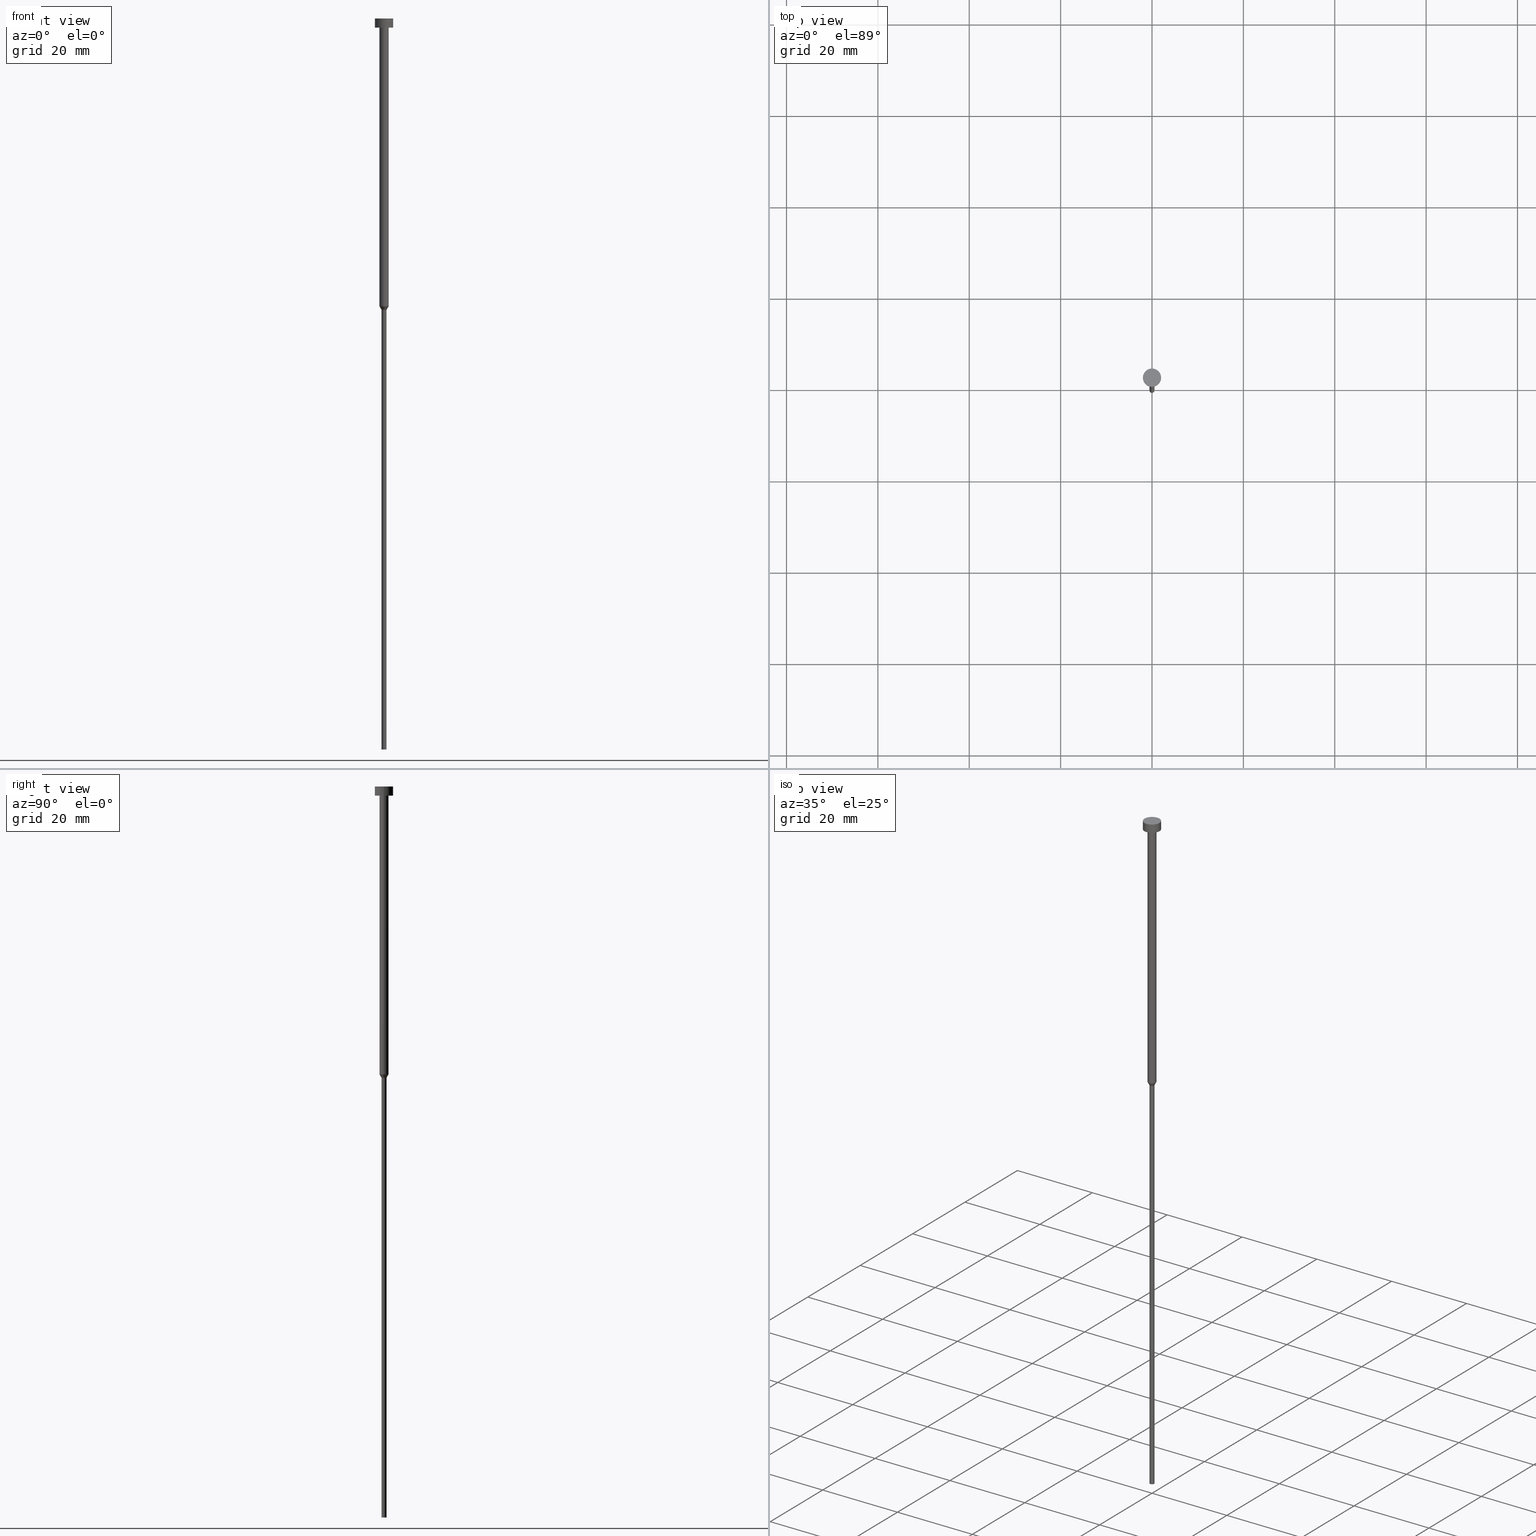
[diagram: canonical four-view strip — front | top / right | iso, engineering-drawing reading convention]
A machine part, canonical four-view strip (front | top / right | iso — engineering-drawing reading convention). The complete STEP part file that produces these views, byte-faithful:
ISO-10303-21;
HEADER;
FILE_DESCRIPTION (( 'STEP AP203' ),
    '1' );
FILE_NAME ('aa10.STEP',
    '2023-02-13T11:51:21',
    ( '' ),
    ( '' ),
    'SwSTEP 2.0',
    'SolidWorks 2019',
    '' );
FILE_SCHEMA (( 'CONFIG_CONTROL_DESIGN' ));
ENDSEC;

DATA;
#1 = EDGE_LOOP ( 'NONE', ( #102, #282, #297, #321 ) ) ;
#2 = VECTOR ( 'NONE', #203, 1000.000000000000000 ) ;
#3 = CARTESIAN_POINT ( 'NONE',  ( -1.000000000000003331, 1.224646799147357151E-16, 0.000000000000000000 ) ) ;
#4 = SECURITY_CLASSIFICATION ( '', '', #103 ) ;
#5 = EDGE_CURVE ( 'NONE', #54, #15, #245, .T. ) ;
#6 = DIRECTION ( 'NONE',  ( 1.000000000000000000, 0.000000000000000000, 0.000000000000000000 ) ) ;
#7 = CARTESIAN_POINT ( 'NONE',  ( 2.000000000000000000, 0.000000000000000000, -2.000000000000000444 ) ) ;
#8 = CYLINDRICAL_SURFACE ( 'NONE', #108, 2.000000000000000000 ) ;
#9 = CONICAL_SURFACE ( 'NONE', #170, 1.000000000000003109, 0.5235987755982981495 ) ;
#10 = ORIENTED_EDGE ( 'NONE', *, *, #331, .T. ) ;
#11 = ORGANIZATION ( 'NEUR�EN�', 'NEUR�EN�', '' ) ;
#12 = EDGE_CURVE ( 'NONE', #116, #174, #180, .T. ) ;
#13 = DIRECTION ( 'NONE',  ( -0.000000000000000000, -0.000000000000000000, 1.000000000000000000 ) ) ;
#14 = PERSON_AND_ORGANIZATION_ROLE ( 'creator' ) ;
#15 = VERTEX_POINT ( 'NONE', #133 ) ;
#16 = APPROVAL_DATE_TIME ( #294, #106 ) ;
#17 = CIRCLE ( 'NONE', #322, 1.000000000000003553 ) ;
#18 = FACE_OUTER_BOUND ( 'NONE', #230, .T. ) ;
#19 = DIRECTION ( 'NONE',  ( -0.000000000000000000, -0.000000000000000000, 1.000000000000000000 ) ) ;
#20 = ORIENTED_EDGE ( 'NONE', *, *, #305, .F. ) ;
#21 = EDGE_CURVE ( 'NONE', #149, #54, #111, .T. ) ;
#22 = APPROVAL_ROLE ( '' ) ;
#23 = EDGE_LOOP ( 'NONE', ( #20, #33 ) ) ;
#24 = AXIS2_PLACEMENT_3D ( 'NONE', #354, #224, #166 ) ;
#25 = PRODUCT_DEFINITION_FORMATION_WITH_SPECIFIED_SOURCE ( 'LIBOVOLN�', '', #261, .NOT_KNOWN. ) ;
#26 = APPROVAL_STATUS ( 'not_yet_approved' ) ;
#27 = DIRECTION ( 'NONE',  ( -0.000000000000000000, -0.000000000000000000, 1.000000000000000000 ) ) ;
#28 = EDGE_CURVE ( 'NONE', #54, #232, #191, .T. ) ;
#29 = AXIS2_PLACEMENT_3D ( 'NONE', #148, #173, #36 ) ;
#30 = CC_DESIGN_APPROVAL ( #252, ( #4 ) ) ;
#31 = LINE ( 'NONE', #222, #227 ) ;
#32 = CARTESIAN_POINT ( 'NONE',  ( -1.000000000000003553, 1.224646799147357398E-16, -2.000000000000000444 ) ) ;
#33 = ORIENTED_EDGE ( 'NONE', *, *, #198, .F. ) ;
#34 = CARTESIAN_POINT ( 'NONE',  ( 0.000000000000000000, 0.000000000000000000, -160.0000000000000000 ) ) ;
#35 = VECTOR ( 'NONE', #68, 1000.000000000000114 ) ;
#36 = DIRECTION ( 'NONE',  ( 1.000000000000000000, 0.000000000000000000, 0.000000000000000000 ) ) ;
#37 = CC_DESIGN_APPROVAL ( #106, ( #57 ) ) ;
#38 = LINE ( 'NONE', #256, #35 ) ;
#39 = DIRECTION ( 'NONE',  ( -0.000000000000000000, -0.000000000000000000, 1.000000000000000000 ) ) ;
#40 = EDGE_LOOP ( 'NONE', ( #241, #100, #274, #172 ) ) ;
#41 = APPLICATION_CONTEXT ( 'configuration controlled 3d designs of mechanical parts and assemblies' ) ;
#42 = AXIS2_PLACEMENT_3D ( 'NONE', #138, #276, #168 ) ;
#43 = DIRECTION ( 'NONE',  ( 1.000000000000000000, 0.000000000000000000, 0.000000000000000000 ) ) ;
#44 = VERTEX_POINT ( 'NONE', #78 ) ;
#45 = DIRECTION ( 'NONE',  ( -0.000000000000000000, -0.000000000000000000, 1.000000000000000000 ) ) ;
#46 = ORIENTED_EDGE ( 'NONE', *, *, #325, .T. ) ;
#47 =( NAMED_UNIT ( * ) SI_UNIT ( $, .STERADIAN. ) SOLID_ANGLE_UNIT ( ) );
#48 = ORIENTED_EDGE ( 'NONE', *, *, #181, .F. ) ;
#49 = LOCAL_TIME ( 12, 51, 21.00000000000000000, #192 ) ;
#50 = CALENDAR_DATE ( 2023, 13, 2 ) ;
#51 = ORIENTED_EDGE ( 'NONE', *, *, #210, .T. ) ;
#52 = CALENDAR_DATE ( 2023, 13, 2 ) ;
#53 = ORIENTED_EDGE ( 'NONE', *, *, #309, .F. ) ;
#54 = VERTEX_POINT ( 'NONE', #347 ) ;
#55 = CC_DESIGN_SECURITY_CLASSIFICATION ( #4, ( #25 ) ) ;
#56 = FACE_BOUND ( 'NONE', #259, .T. ) ;
#57 = PRODUCT_DEFINITION ( 'NEZN�M�', '', #25, #268 ) ;
#58 = ORIENTED_EDGE ( 'NONE', *, *, #146, .F. ) ;
#59 = VECTOR ( 'NONE', #209, 1000.000000000000000 ) ;
#60 = ADVANCED_BREP_SHAPE_REPRESENTATION ( 'aa10', ( #242, #177 ), #90 ) ;
#61 = VERTEX_POINT ( 'NONE', #109 ) ;
#62 = ADVANCED_FACE ( 'NONE', ( #217 ), #348, .T. ) ;
#63 = DIRECTION ( 'NONE',  ( 1.000000000000000000, 0.000000000000000000, 0.000000000000000000 ) ) ;
#64 = CARTESIAN_POINT ( 'NONE',  ( 0.000000000000000000, 0.000000000000000000, 0.000000000000000000 ) ) ;
#65 = ORIENTED_EDGE ( 'NONE', *, *, #12, .T. ) ;
#66 = DIRECTION ( 'NONE',  ( 1.000000000000000000, 0.000000000000000000, 0.000000000000000000 ) ) ;
#67 = PRODUCT_RELATED_PRODUCT_CATEGORY ( 'detail', '', ( #261 ) ) ;
#68 = DIRECTION ( 'NONE',  ( 0.4999999999999993339, 0.000000000000000000, 0.8660254037844389297 ) ) ;
#69 = ORIENTED_EDGE ( 'NONE', *, *, #28, .T. ) ;
#70 = DIRECTION ( 'NONE',  ( -0.000000000000000000, -0.000000000000000000, 1.000000000000000000 ) ) ;
#71 = APPROVAL_PERSON_ORGANIZATION ( #79, #283, #22 ) ;
#72 = EDGE_CURVE ( 'NONE', #15, #61, #328, .T. ) ;
#73 = DATE_AND_TIME ( #208, #342 ) ;
#74 = CARTESIAN_POINT ( 'NONE',  ( 0.000000000000000000, 0.000000000000000000, -63.77942286340600475 ) ) ;
#75 = APPROVAL_DATE_TIME ( #73, #283 ) ;
#76 = VERTEX_POINT ( 'NONE', #266 ) ;
#77 = COORDINATED_UNIVERSAL_TIME_OFFSET ( 1, 0, .AHEAD. ) ;
#78 = CARTESIAN_POINT ( 'NONE',  ( -2.000000000000000000, 2.449293598294706414E-16, -2.000000000000000444 ) ) ;
#79 = PERSON_AND_ORGANIZATION ( #200, #11 ) ;
#80 = ORIENTED_EDGE ( 'NONE', *, *, #250, .F. ) ;
#81 = ADVANCED_FACE ( 'NONE', ( #18 ), #131, .T. ) ;
#82 = CALENDAR_DATE ( 2023, 13, 2 ) ;
#83 = FACE_OUTER_BOUND ( 'NONE', #23, .T. ) ;
#84 = AXIS2_PLACEMENT_3D ( 'NONE', #118, #251, #226 ) ;
#85 = AXIS2_PLACEMENT_3D ( 'NONE', #262, #333, #95 ) ;
#86 = PLANE ( 'NONE',  #24 ) ;
#87 = DATE_TIME_ROLE ( 'classification_date' ) ;
#88 = ADVANCED_FACE ( 'NONE', ( #56, #83 ), #86, .T. ) ;
#89 = AXIS2_PLACEMENT_3D ( 'NONE', #144, #255, #6 ) ;
#90 =( GEOMETRIC_REPRESENTATION_CONTEXT ( 3 ) GLOBAL_UNCERTAINTY_ASSIGNED_CONTEXT ( ( #107 ) ) GLOBAL_UNIT_ASSIGNED_CONTEXT ( ( #110, #270, #47 ) ) REPRESENTATION_CONTEXT ( 'NONE', 'WORKASPACE' ) );
#91 = DIRECTION ( 'NONE',  ( 0.000000000000000000, -0.000000000000000000, 1.000000000000000000 ) ) ;
#92 = DIRECTION ( 'NONE',  ( 1.000000000000000000, 0.000000000000000000, 0.000000000000000000 ) ) ;
#93 = VERTEX_POINT ( 'NONE', #32 ) ;
#94 = AXIS2_PLACEMENT_3D ( 'NONE', #115, #197, #112 ) ;
#95 = DIRECTION ( 'NONE',  ( 1.000000000000000000, 0.000000000000000000, 0.000000000000000000 ) ) ;
#96 = ORIENTED_EDGE ( 'NONE', *, *, #142, .F. ) ;
#97 = DIRECTION ( 'NONE',  ( 1.000000000000000000, 0.000000000000000000, 0.000000000000000000 ) ) ;
#98 = LINE ( 'NONE', #205, #246 ) ;
#99 = DATE_TIME_ROLE ( 'creation_date' ) ;
#100 = ORIENTED_EDGE ( 'NONE', *, *, #5, .T. ) ;
#101 = COORDINATED_UNIVERSAL_TIME_OFFSET ( 1, 0, .AHEAD. ) ;
#102 = ORIENTED_EDGE ( 'NONE', *, *, #176, .T. ) ;
#103 = SECURITY_CLASSIFICATION_LEVEL ( 'unclassified' ) ;
#104 = DIRECTION ( 'NONE',  ( 1.000000000000000000, 0.000000000000000000, 0.000000000000000000 ) ) ;
#105 = CARTESIAN_POINT ( 'NONE',  ( 0.000000000000000000, 0.000000000000000000, 0.000000000000000000 ) ) ;
#106 = APPROVAL ( #187, 'NEUR�EN�' ) ;
#107 = UNCERTAINTY_MEASURE_WITH_UNIT (LENGTH_MEASURE( 1.000000000000000082E-05 ), #110, 'distance_accuracy_value', 'NONE');
#108 = AXIS2_PLACEMENT_3D ( 'NONE', #338, #143, #66 ) ;
#109 = CARTESIAN_POINT ( 'NONE',  ( 1.000000000000003109, 0.000000000000000000, -63.00000000000000000 ) ) ;
#110 =( LENGTH_UNIT ( ) NAMED_UNIT ( * ) SI_UNIT ( .MILLI., .METRE. ) );
#111 = LINE ( 'NONE', #296, #59 ) ;
#112 = DIRECTION ( 'NONE',  ( -1.000000000000000000, 0.000000000000000000, -0.000000000000000000 ) ) ;
#113 = ADVANCED_FACE ( 'NONE', ( #193 ), #9, .T. ) ;
#114 = CARTESIAN_POINT ( 'NONE',  ( 0.000000000000000000, 0.000000000000000000, -63.00000000000000000 ) ) ;
#115 = CARTESIAN_POINT ( 'NONE',  ( 0.000000000000000000, 0.000000000000000000, -160.0000000000000000 ) ) ;
#116 = VERTEX_POINT ( 'NONE', #167 ) ;
#117 = SHAPE_DEFINITION_REPRESENTATION ( #120, #60 ) ;
#118 = CARTESIAN_POINT ( 'NONE',  ( 0.000000000000000000, 0.000000000000000000, -63.77942286340600475 ) ) ;
#119 = VECTOR ( 'NONE', #258, 1000.000000000000000 ) ;
#120 = PRODUCT_DEFINITION_SHAPE ( 'NONE', 'NONE',  #57 ) ;
#121 = CARTESIAN_POINT ( 'NONE',  ( 1.000000000000003553, 0.000000000000000000, -2.000000000000000444 ) ) ;
#122 = LINE ( 'NONE', #3, #2 ) ;
#123 = ORIENTED_EDGE ( 'NONE', *, *, #28, .F. ) ;
#124 = CARTESIAN_POINT ( 'NONE',  ( 0.5499999999999999334, 0.000000000000000000, 0.000000000000000000 ) ) ;
#125 = FACE_OUTER_BOUND ( 'NONE', #204, .T. ) ;
#126 = ADVANCED_FACE ( 'NONE', ( #253 ), #351, .T. ) ;
#127 = DIRECTION ( 'NONE',  ( 0.000000000000000000, 0.000000000000000000, 1.000000000000000000 ) ) ;
#128 = CARTESIAN_POINT ( 'NONE',  ( 0.000000000000000000, 0.000000000000000000, -2.449293598294705921E-16 ) ) ;
#129 = CIRCLE ( 'NONE', #42, 0.5499999999999999334 ) ;
#130 = PERSON_AND_ORGANIZATION ( #200, #11 ) ;
#131 = CYLINDRICAL_SURFACE ( 'NONE', #221, 1.000000000000003331 ) ;
#132 = MECHANICAL_CONTEXT ( 'NONE', #41, 'mechanical' ) ;
#133 = CARTESIAN_POINT ( 'NONE',  ( -1.000000000000003109, 1.224646799147356905E-16, -63.00000000000000000 ) ) ;
#134 = CC_DESIGN_PERSON_AND_ORGANIZATION_ASSIGNMENT ( #317, #160, ( #261 ) ) ;
#135 = AXIS2_PLACEMENT_3D ( 'NONE', #332, #13, #92 ) ;
#136 = ORIENTED_EDGE ( 'NONE', *, *, #176, .F. ) ;
#137 = EDGE_CURVE ( 'NONE', #232, #54, #202, .T. ) ;
#138 = CARTESIAN_POINT ( 'NONE',  ( 0.000000000000000000, 0.000000000000000000, -160.0000000000000000 ) ) ;
#139 = DIRECTION ( 'NONE',  ( 1.000000000000000000, 0.000000000000000000, 0.000000000000000000 ) ) ;
#140 = APPROVAL_PERSON_ORGANIZATION ( #184, #106, #243 ) ;
#141 = CARTESIAN_POINT ( 'NONE',  ( 0.000000000000000000, 0.000000000000000000, -2.000000000000000444 ) ) ;
#142 = EDGE_CURVE ( 'NONE', #301, #93, #17, .T. ) ;
#143 = DIRECTION ( 'NONE',  ( -0.000000000000000000, -0.000000000000000000, 1.000000000000000000 ) ) ;
#144 = CARTESIAN_POINT ( 'NONE',  ( 0.000000000000000000, 0.000000000000000000, 0.000000000000000000 ) ) ;
#145 = ORIENTED_EDGE ( 'NONE', *, *, #12, .F. ) ;
#146 = EDGE_CURVE ( 'NONE', #61, #301, #31, .T. ) ;
#147 = VECTOR ( 'NONE', #349, 1000.000000000000114 ) ;
#148 = CARTESIAN_POINT ( 'NONE',  ( 0.000000000000000000, 0.000000000000000000, -2.000000000000000444 ) ) ;
#149 = VERTEX_POINT ( 'NONE', #329 ) ;
#150 = VECTOR ( 'NONE', #70, 1000.000000000000000 ) ;
#151 = CIRCLE ( 'NONE', #239, 2.000000000000000000 ) ;
#152 = AXIS2_PLACEMENT_3D ( 'NONE', #267, #45, #219 ) ;
#153 = LINE ( 'NONE', #124, #150 ) ;
#154 = EDGE_LOOP ( 'NONE', ( #323, #206, #53, #80 ) ) ;
#155 = EDGE_LOOP ( 'NONE', ( #46, #51, #96, #58 ) ) ;
#156 = AXIS2_PLACEMENT_3D ( 'NONE', #162, #220, #104 ) ;
#157 = PERSON_AND_ORGANIZATION_ROLE ( 'creator' ) ;
#158 = CARTESIAN_POINT ( 'NONE',  ( -1.000000000000003109, 1.224646799147356905E-16, -63.00000000000000000 ) ) ;
#159 = CC_DESIGN_PERSON_AND_ORGANIZATION_ASSIGNMENT ( #213, #319, ( #4 ) ) ;
#160 = PERSON_AND_ORGANIZATION_ROLE ( 'design_owner' ) ;
#161 = APPROVAL_STATUS ( 'not_yet_approved' ) ;
#162 = CARTESIAN_POINT ( 'NONE',  ( 0.000000000000000000, 0.000000000000000000, -63.00000000000000000 ) ) ;
#163 = CC_DESIGN_PERSON_AND_ORGANIZATION_ASSIGNMENT ( #289, #291, ( #25 ) ) ;
#164 = AXIS2_PLACEMENT_3D ( 'NONE', #141, #306, #254 ) ;
#165 = ORIENTED_EDGE ( 'NONE', *, *, #146, .T. ) ;
#166 = DIRECTION ( 'NONE',  ( -1.000000000000000000, 0.000000000000000000, -0.000000000000000000 ) ) ;
#167 = CARTESIAN_POINT ( 'NONE',  ( -2.000000000000000000, 2.449293598294706414E-16, -2.449293598294705921E-16 ) ) ;
#168 = DIRECTION ( 'NONE',  ( 1.000000000000000000, 0.000000000000000000, 0.000000000000000000 ) ) ;
#169 = DIRECTION ( 'NONE',  ( 1.000000000000000000, 0.000000000000000000, 0.000000000000000000 ) ) ;
#170 = AXIS2_PLACEMENT_3D ( 'NONE', #114, #249, #63 ) ;
#171 = CARTESIAN_POINT ( 'NONE',  ( 0.000000000000000000, 0.000000000000000000, -63.00000000000000000 ) ) ;
#172 = ORIENTED_EDGE ( 'NONE', *, *, #331, .F. ) ;
#173 = DIRECTION ( 'NONE',  ( -0.000000000000000000, -0.000000000000000000, 1.000000000000000000 ) ) ;
#174 = VERTEX_POINT ( 'NONE', #326 ) ;
#175 = CARTESIAN_POINT ( 'NONE',  ( 0.5500000000000000444, 0.000000000000000000, -63.77942286340600475 ) ) ;
#176 = EDGE_CURVE ( 'NONE', #76, #149, #129, .T. ) ;
#177 = AXIS2_PLACEMENT_3D ( 'NONE', #105, #127, #263 ) ;
#178 = PERSON_AND_ORGANIZATION ( #200, #11 ) ;
#179 = DIRECTION ( 'NONE',  ( -0.000000000000000000, -0.000000000000000000, 1.000000000000000000 ) ) ;
#180 = CIRCLE ( 'NONE', #340, 2.000000000000000000 ) ;
#181 = EDGE_CURVE ( 'NONE', #93, #301, #293, .T. ) ;
#182 = ORIENTED_EDGE ( 'NONE', *, *, #218, .T. ) ;
#183 = AXIS2_PLACEMENT_3D ( 'NONE', #34, #310, #97 ) ;
#184 = PERSON_AND_ORGANIZATION ( #200, #11 ) ;
#185 = LOCAL_TIME ( 12, 51, 21.00000000000000000, #101 ) ;
#186 = ORIENTED_EDGE ( 'NONE', *, *, #5, .F. ) ;
#187 = APPROVAL_STATUS ( 'not_yet_approved' ) ;
#188 = ORIENTED_EDGE ( 'NONE', *, *, #314, .F. ) ;
#189 = EDGE_LOOP ( 'NONE', ( #186, #69, #10, #285 ) ) ;
#190 = DATE_AND_TIME ( #82, #49 ) ;
#191 = CIRCLE ( 'NONE', #311, 0.5500000000000000444 ) ;
#192 = COORDINATED_UNIVERSAL_TIME_OFFSET ( 1, 0, .AHEAD. ) ;
#193 = FACE_OUTER_BOUND ( 'NONE', #40, .T. ) ;
#194 = APPROVAL_ROLE ( '' ) ;
#195 = ADVANCED_FACE ( 'NONE', ( #199 ), #8, .T. ) ;
#196 = CIRCLE ( 'NONE', #304, 1.000000000000003109 ) ;
#197 = DIRECTION ( 'NONE',  ( 0.000000000000000000, 0.000000000000000000, -1.000000000000000000 ) ) ;
#198 = EDGE_CURVE ( 'NONE', #44, #341, #279, .T. ) ;
#199 = FACE_OUTER_BOUND ( 'NONE', #154, .T. ) ;
#200 = PERSON ( 'NEUR�EN�', 'NEUR�EN�', 'NEUR�EN�', ('NEUR�EN�'), ('NEUR�EN�'), ('NEUR�EN�') ) ;
#201 = LINE ( 'NONE', #284, #119 ) ;
#202 = CIRCLE ( 'NONE', #84, 0.5500000000000000444 ) ;
#203 = DIRECTION ( 'NONE',  ( -0.000000000000000000, -0.000000000000000000, 1.000000000000000000 ) ) ;
#204 = EDGE_LOOP ( 'NONE', ( #335, #236, #182, #123 ) ) ;
#205 = CARTESIAN_POINT ( 'NONE',  ( 2.000000000000000000, 0.000000000000000000, 0.000000000000000000 ) ) ;
#206 = ORIENTED_EDGE ( 'NONE', *, *, #314, .T. ) ;
#207 = APPROVAL_PERSON_ORGANIZATION ( #353, #252, #194 ) ;
#208 = CALENDAR_DATE ( 2023, 13, 2 ) ;
#209 = DIRECTION ( 'NONE',  ( -0.000000000000000000, -0.000000000000000000, 1.000000000000000000 ) ) ;
#210 = EDGE_CURVE ( 'NONE', #15, #93, #122, .T. ) ;
#211 = DATE_AND_TIME ( #52, #352 ) ;
#212 = ORIENTED_EDGE ( 'NONE', *, *, #210, .F. ) ;
#213 = PERSON_AND_ORGANIZATION ( #200, #11 ) ;
#214 = CARTESIAN_POINT ( 'NONE',  ( 0.000000000000000000, 0.000000000000000000, 0.000000000000000000 ) ) ;
#215 = AXIS2_PLACEMENT_3D ( 'NONE', #64, #234, #169 ) ;
#216 = APPLICATION_PROTOCOL_DEFINITION ( 'international standard', 'config_control_design', 1994, #281 ) ;
#217 = FACE_OUTER_BOUND ( 'NONE', #189, .T. ) ;
#218 = EDGE_CURVE ( 'NONE', #76, #232, #153, .T. ) ;
#219 = DIRECTION ( 'NONE',  ( 1.000000000000000000, 0.000000000000000000, 0.000000000000000000 ) ) ;
#220 = DIRECTION ( 'NONE',  ( -0.000000000000000000, -0.000000000000000000, 1.000000000000000000 ) ) ;
#221 = AXIS2_PLACEMENT_3D ( 'NONE', #214, #343, #139 ) ;
#222 = CARTESIAN_POINT ( 'NONE',  ( 1.000000000000003331, 0.000000000000000000, 0.000000000000000000 ) ) ;
#223 = CC_DESIGN_PERSON_AND_ORGANIZATION_ASSIGNMENT ( #130, #14, ( #57 ) ) ;
#224 = DIRECTION ( 'NONE',  ( 0.000000000000000000, 0.000000000000000000, -1.000000000000000000 ) ) ;
#225 = ORIENTED_EDGE ( 'NONE', *, *, #72, .T. ) ;
#226 = DIRECTION ( 'NONE',  ( 1.000000000000000000, 0.000000000000000000, 0.000000000000000000 ) ) ;
#227 = VECTOR ( 'NONE', #27, 1000.000000000000000 ) ;
#228 = PLANE ( 'NONE',  #233 ) ;
#229 = FACE_OUTER_BOUND ( 'NONE', #155, .T. ) ;
#230 = EDGE_LOOP ( 'NONE', ( #212, #225, #165, #48 ) ) ;
#231 = FACE_OUTER_BOUND ( 'NONE', #248, .T. ) ;
#232 = VERTEX_POINT ( 'NONE', #175 ) ;
#233 = AXIS2_PLACEMENT_3D ( 'NONE', #315, #91, #307 ) ;
#234 = DIRECTION ( 'NONE',  ( -0.000000000000000000, -0.000000000000000000, 1.000000000000000000 ) ) ;
#235 = DIRECTION ( 'NONE',  ( -0.000000000000000000, -0.000000000000000000, 1.000000000000000000 ) ) ;
#236 = ORIENTED_EDGE ( 'NONE', *, *, #320, .T. ) ;
#237 = APPLICATION_PROTOCOL_DEFINITION ( 'international standard', 'config_control_design', 1994, #41 ) ;
#238 = DIRECTION ( 'NONE',  ( 1.000000000000000000, 0.000000000000000000, 0.000000000000000000 ) ) ;
#239 = AXIS2_PLACEMENT_3D ( 'NONE', #337, #39, #43 ) ;
#240 = FACE_OUTER_BOUND ( 'NONE', #1, .T. ) ;
#241 = ORIENTED_EDGE ( 'NONE', *, *, #137, .T. ) ;
#242 = MANIFOLD_SOLID_BREP ( 'Rotovat1', #300 ) ;
#243 = APPROVAL_ROLE ( '' ) ;
#244 = DIRECTION ( 'NONE',  ( 1.000000000000000000, 0.000000000000000000, 0.000000000000000000 ) ) ;
#245 = LINE ( 'NONE', #158, #147 ) ;
#246 = VECTOR ( 'NONE', #235, 1000.000000000000000 ) ;
#247 = CC_DESIGN_PERSON_AND_ORGANIZATION_ASSIGNMENT ( #178, #157, ( #25 ) ) ;
#248 = EDGE_LOOP ( 'NONE', ( #188, #292, #318, #145 ) ) ;
#249 = DIRECTION ( 'NONE',  ( -0.000000000000000000, -0.000000000000000000, 1.000000000000000000 ) ) ;
#250 = EDGE_CURVE ( 'NONE', #341, #174, #98, .T. ) ;
#251 = DIRECTION ( 'NONE',  ( -0.000000000000000000, -0.000000000000000000, 1.000000000000000000 ) ) ;
#252 = APPROVAL ( #26, 'NEUR�EN�' ) ;
#253 = FACE_OUTER_BOUND ( 'NONE', #277, .T. ) ;
#254 = DIRECTION ( 'NONE',  ( 1.000000000000000000, 0.000000000000000000, 0.000000000000000000 ) ) ;
#255 = DIRECTION ( 'NONE',  ( -0.000000000000000000, -0.000000000000000000, 1.000000000000000000 ) ) ;
#256 = CARTESIAN_POINT ( 'NONE',  ( 1.000000000000003109, 0.000000000000000000, -63.00000000000000000 ) ) ;
#257 = ADVANCED_FACE ( 'NONE', ( #330 ), #228, .T. ) ;
#258 = DIRECTION ( 'NONE',  ( -0.000000000000000000, -0.000000000000000000, 1.000000000000000000 ) ) ;
#259 = EDGE_LOOP ( 'NONE', ( #346, #269 ) ) ;
#260 = AXIS2_PLACEMENT_3D ( 'NONE', #273, #324, #290 ) ;
#261 = PRODUCT ( 'aa10', 'aa10', '', ( #132 ) ) ;
#262 = CARTESIAN_POINT ( 'NONE',  ( 0.000000000000000000, 0.000000000000000000, 0.000000000000000000 ) ) ;
#263 = DIRECTION ( 'NONE',  ( 1.000000000000000000, 0.000000000000000000, 0.000000000000000000 ) ) ;
#264 = ADVANCED_FACE ( 'NONE', ( #231 ), #278, .T. ) ;
#265 = CALENDAR_DATE ( 2023, 13, 2 ) ;
#266 = CARTESIAN_POINT ( 'NONE',  ( 0.5499999999999999334, 0.000000000000000000, -160.0000000000000000 ) ) ;
#267 = CARTESIAN_POINT ( 'NONE',  ( 0.000000000000000000, 0.000000000000000000, 0.000000000000000000 ) ) ;
#268 = DESIGN_CONTEXT ( 'detailed design', #281, 'design' ) ;
#269 = ORIENTED_EDGE ( 'NONE', *, *, #181, .T. ) ;
#270 =( NAMED_UNIT ( * ) PLANE_ANGLE_UNIT ( ) SI_UNIT ( $, .RADIAN. ) );
#271 = ORIENTED_EDGE ( 'NONE', *, *, #309, .T. ) ;
#272 = CYLINDRICAL_SURFACE ( 'NONE', #152, 0.5499999999999999334 ) ;
#273 = CARTESIAN_POINT ( 'NONE',  ( 0.000000000000000000, 0.000000000000000000, -63.00000000000000000 ) ) ;
#274 = ORIENTED_EDGE ( 'NONE', *, *, #325, .F. ) ;
#275 = CARTESIAN_POINT ( 'NONE',  ( 0.000000000000000000, 0.000000000000000000, -2.000000000000000444 ) ) ;
#276 = DIRECTION ( 'NONE',  ( -0.000000000000000000, -0.000000000000000000, 1.000000000000000000 ) ) ;
#277 = EDGE_LOOP ( 'NONE', ( #136, #308 ) ) ;
#278 = CYLINDRICAL_SURFACE ( 'NONE', #215, 2.000000000000000000 ) ;
#279 = CIRCLE ( 'NONE', #29, 2.000000000000000000 ) ;
#280 = DIRECTION ( 'NONE',  ( -0.000000000000000000, -0.000000000000000000, 1.000000000000000000 ) ) ;
#281 = APPLICATION_CONTEXT ( 'configuration controlled 3d designs of mechanical parts and assemblies' ) ;
#282 = ORIENTED_EDGE ( 'NONE', *, *, #21, .T. ) ;
#283 = APPROVAL ( #161, 'NEUR�EN�' ) ;
#284 = CARTESIAN_POINT ( 'NONE',  ( -2.000000000000000000, 2.449293598294706414E-16, 0.000000000000000000 ) ) ;
#285 = ORIENTED_EDGE ( 'NONE', *, *, #72, .F. ) ;
#286 = CYLINDRICAL_SURFACE ( 'NONE', #85, 0.5499999999999999334 ) ;
#287 = CIRCLE ( 'NONE', #135, 2.000000000000000000 ) ;
#288 = ADVANCED_FACE ( 'NONE', ( #229 ), #312, .T. ) ;
#289 = PERSON_AND_ORGANIZATION ( #200, #11 ) ;
#290 = DIRECTION ( 'NONE',  ( 1.000000000000000000, 0.000000000000000000, 0.000000000000000000 ) ) ;
#291 = PERSON_AND_ORGANIZATION_ROLE ( 'design_supplier' ) ;
#292 = ORIENTED_EDGE ( 'NONE', *, *, #198, .T. ) ;
#293 = CIRCLE ( 'NONE', #164, 1.000000000000003553 ) ;
#294 = DATE_AND_TIME ( #265, #185 ) ;
#295 = EDGE_LOOP ( 'NONE', ( #271, #65 ) ) ;
#296 = CARTESIAN_POINT ( 'NONE',  ( -0.5499999999999999334, 6.735557395310441284E-17, 0.000000000000000000 ) ) ;
#297 = ORIENTED_EDGE ( 'NONE', *, *, #137, .F. ) ;
#298 = CC_DESIGN_DATE_AND_TIME_ASSIGNMENT ( #299, #87, ( #4 ) ) ;
#299 = DATE_AND_TIME ( #50, #336 ) ;
#300 = CLOSED_SHELL ( 'NONE', ( #195, #288, #113, #355, #126, #350, #62, #81, #88, #264, #257 ) ) ;
#301 = VERTEX_POINT ( 'NONE', #121 ) ;
#302 = APPROVAL_DATE_TIME ( #190, #252 ) ;
#303 = DIRECTION ( 'NONE',  ( 1.000000000000000000, 0.000000000000000000, 0.000000000000000000 ) ) ;
#304 = AXIS2_PLACEMENT_3D ( 'NONE', #171, #280, #313 ) ;
#305 = EDGE_CURVE ( 'NONE', #341, #44, #151, .T. ) ;
#306 = DIRECTION ( 'NONE',  ( -0.000000000000000000, -0.000000000000000000, 1.000000000000000000 ) ) ;
#307 = DIRECTION ( 'NONE',  ( 1.000000000000000000, 0.000000000000000000, 0.000000000000000000 ) ) ;
#308 = ORIENTED_EDGE ( 'NONE', *, *, #320, .F. ) ;
#309 = EDGE_CURVE ( 'NONE', #174, #116, #287, .T. ) ;
#310 = DIRECTION ( 'NONE',  ( -0.000000000000000000, -0.000000000000000000, 1.000000000000000000 ) ) ;
#311 = AXIS2_PLACEMENT_3D ( 'NONE', #74, #179, #244 ) ;
#312 = CYLINDRICAL_SURFACE ( 'NONE', #89, 1.000000000000003331 ) ;
#313 = DIRECTION ( 'NONE',  ( 1.000000000000000000, 0.000000000000000000, 0.000000000000000000 ) ) ;
#314 = EDGE_CURVE ( 'NONE', #44, #116, #201, .T. ) ;
#315 = CARTESIAN_POINT ( 'NONE',  ( 0.000000000000000000, 0.000000000000000000, -1.224646799147352961E-16 ) ) ;
#316 = CC_DESIGN_APPROVAL ( #283, ( #25 ) ) ;
#317 = PERSON_AND_ORGANIZATION ( #200, #11 ) ;
#318 = ORIENTED_EDGE ( 'NONE', *, *, #250, .T. ) ;
#319 = PERSON_AND_ORGANIZATION_ROLE ( 'classification_officer' ) ;
#320 = EDGE_CURVE ( 'NONE', #149, #76, #334, .T. ) ;
#321 = ORIENTED_EDGE ( 'NONE', *, *, #218, .F. ) ;
#322 = AXIS2_PLACEMENT_3D ( 'NONE', #275, #327, #303 ) ;
#323 = ORIENTED_EDGE ( 'NONE', *, *, #305, .T. ) ;
#324 = DIRECTION ( 'NONE',  ( -0.000000000000000000, -0.000000000000000000, 1.000000000000000000 ) ) ;
#325 = EDGE_CURVE ( 'NONE', #61, #15, #196, .T. ) ;
#326 = CARTESIAN_POINT ( 'NONE',  ( 2.000000000000000000, 0.000000000000000000, -2.449293598294705921E-16 ) ) ;
#327 = DIRECTION ( 'NONE',  ( -0.000000000000000000, -0.000000000000000000, 1.000000000000000000 ) ) ;
#328 = CIRCLE ( 'NONE', #260, 1.000000000000003109 ) ;
#329 = CARTESIAN_POINT ( 'NONE',  ( -0.5499999999999999334, 6.735557395310441284E-17, -160.0000000000000000 ) ) ;
#330 = FACE_OUTER_BOUND ( 'NONE', #295, .T. ) ;
#331 = EDGE_CURVE ( 'NONE', #232, #61, #38, .T. ) ;
#332 = CARTESIAN_POINT ( 'NONE',  ( 0.000000000000000000, 0.000000000000000000, -2.449293598294705921E-16 ) ) ;
#333 = DIRECTION ( 'NONE',  ( -0.000000000000000000, -0.000000000000000000, 1.000000000000000000 ) ) ;
#334 = CIRCLE ( 'NONE', #183, 0.5499999999999999334 ) ;
#335 = ORIENTED_EDGE ( 'NONE', *, *, #21, .F. ) ;
#336 = LOCAL_TIME ( 12, 51, 21.00000000000000000, #77 ) ;
#337 = CARTESIAN_POINT ( 'NONE',  ( 0.000000000000000000, 0.000000000000000000, -2.000000000000000444 ) ) ;
#338 = CARTESIAN_POINT ( 'NONE',  ( 0.000000000000000000, 0.000000000000000000, 0.000000000000000000 ) ) ;
#339 = COORDINATED_UNIVERSAL_TIME_OFFSET ( 1, 0, .AHEAD. ) ;
#340 = AXIS2_PLACEMENT_3D ( 'NONE', #128, #19, #238 ) ;
#341 = VERTEX_POINT ( 'NONE', #7 ) ;
#342 = LOCAL_TIME ( 12, 51, 21.00000000000000000, #345 ) ;
#343 = DIRECTION ( 'NONE',  ( -0.000000000000000000, -0.000000000000000000, 1.000000000000000000 ) ) ;
#344 = CC_DESIGN_DATE_AND_TIME_ASSIGNMENT ( #211, #99, ( #57 ) ) ;
#345 = COORDINATED_UNIVERSAL_TIME_OFFSET ( 1, 0, .AHEAD. ) ;
#346 = ORIENTED_EDGE ( 'NONE', *, *, #142, .T. ) ;
#347 = CARTESIAN_POINT ( 'NONE',  ( -0.5500000000000000444, 6.735557395310442516E-17, -63.77942286340600475 ) ) ;
#348 = CONICAL_SURFACE ( 'NONE', #156, 1.000000000000003109, 0.5235987755982981495 ) ;
#349 = DIRECTION ( 'NONE',  ( -0.4999999999999993339, 6.123233995736757408E-17, 0.8660254037844389297 ) ) ;
#350 = ADVANCED_FACE ( 'NONE', ( #125 ), #286, .T. ) ;
#351 = PLANE ( 'NONE',  #94 ) ;
#352 = LOCAL_TIME ( 12, 51, 21.00000000000000000, #339 ) ;
#353 = PERSON_AND_ORGANIZATION ( #200, #11 ) ;
#354 = CARTESIAN_POINT ( 'NONE',  ( 0.000000000000000000, -2.000000000000000000, -2.000000000000000444 ) ) ;
#355 = ADVANCED_FACE ( 'NONE', ( #240 ), #272, .T. ) ;
ENDSEC;
END-ISO-10303-21;
